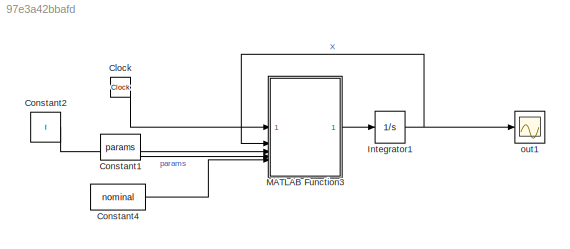
MODEL slx_97e3a42bbafd
KIND model
CONFIG AbsTol = auto
CONFIG EnableMultiTasking = off
CONFIG FixedStep = auto
CONFIG MaxStep = auto
CONFIG MinStep = auto
CONFIG RelTol = 1e-3
CONFIG SampleTimeConstraint = Unconstrained
CONFIG SolverName = VariableStepAuto
CONFIG StartTime = 0.0
CONFIG StopTime = 10.0
BLOCK [Clock] Clock
BLOCK [Constant] Constant1
  NameLocation = top
  OutDataTypeStr = Bus: struggle
  Value = params
BLOCK [Constant] Constant2
  Value = I
BLOCK [Constant] Constant4
  OutDataTypeStr = Bus: geoBus
  Value = nominal
BLOCK [Integrator] Integrator1
  InitialCondition = X0
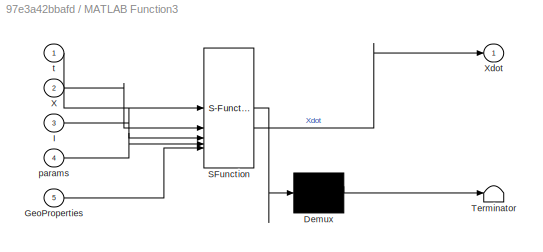
BLOCK [SubSystem] MATLAB Function3
  ErrorFcn = Stateflow.Translate.translate
  LibrarySourceBlock = simulink/User-Defined\nFunctions/MATLAB Function
  PermitHierarchicalResolution = ExplicitOnly
  SFBlockType = MATLAB Function
  TreatAsAtomicUnit = on
BLOCK [Demux] MATLAB Function3/ Demux 
  Outputs = 1
BLOCK [S-Function] MATLAB Function3/ SFunction 
  EnableBusSupport = on
  FunctionName = sf_sfun
  PortCounts = [5 2]
  SFcnIsStateOwnerBlock = off
  SFunctionDeploymentMode = off
  Tag = Stateflow S-Function 4
BLOCK [Terminator] MATLAB Function3/ Terminator 
BLOCK [Inport] MATLAB Function3/GeoProperties
  Port = 5
BLOCK [Inport] MATLAB Function3/I
  Port = 3
BLOCK [Inport] MATLAB Function3/X
  Port = 2
BLOCK [Outport] MATLAB Function3/Xdot
BLOCK [Inport] MATLAB Function3/params
  Port = 4
BLOCK [Inport] MATLAB Function3/t
BLOCK [Scope] out1
  Floating = off
  NumInputPorts = 1
  ScopeSpecificationString = Simulink.scopes.TimeScopeBlockCfg('CurrentConfiguration', extmgr.ConfigurationSet(extmgr.Configuration('Core','General UI',true),extmgr.Configuration('Core','Source UI',true),extmgr.Configuration('Sources','WiredSimulink',true,'DataLogging',true,'DataLoggingVariableName','ScopeData1'),extmgr.Configuration('Visuals','Time Domain',true,'SerializedDisplays',{struct('MinYLimReal','-0.1364','MaxYLimRea...<+1525ch>
LINE Clock:1 -> MATLAB Function3:1
LINE Constant1:1 -> MATLAB Function3:4
LINE Constant2:1 -> MATLAB Function3:3
LINE Constant4:1 -> MATLAB Function3:5
NET Integrator1:1 -> MATLAB Function3:2, out1:1
LINE MATLAB Function3:1 -> Integrator1:1
note: NET lines group one-source signal fan-out (src -> all destinations, sorted); 1:1 wires keep LINE
CHART MATLAB Function3 states=1 transitions=1
  STATE_LABEL 'eML_blk_kernel()'
  STATE_LABEL 'SCRIPT:\nfunction Xdot = ODE(t,X,I,params,GeoProperties)\n\n\n\nXdot = SC_ODE(t,X,I,params,GeoProperties);\nend\n'
CHART  states=0 transitions=0
